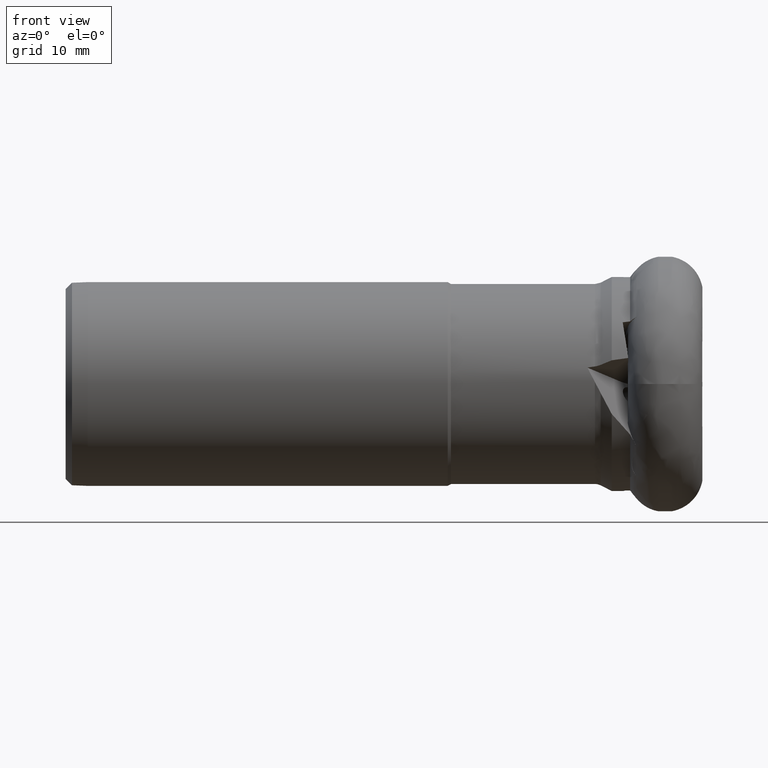
[diagram: clean part render]
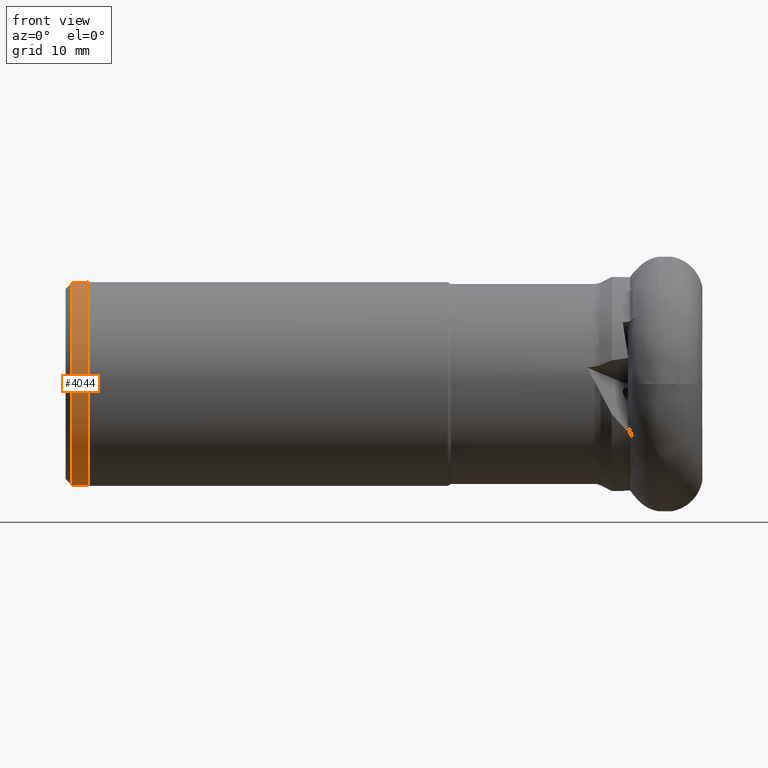
[diagram: same view with one face highlighted and labeled with its STEP entity id]
A machine part, front view. The second image highlights one B-rep face of the part: STEP entity #4044.
In plain terms, the highlighted conical surface has half-angle 2.291 deg.
Its self-contained STEP definition (entity closure, byte-faithful):
#484 = CARTESIAN_POINT ( 'NONE',  ( -97.75000000000000000, 0.0000000000000000000, 0.0000000000000000000 ) ) ;
#766 = DIRECTION ( 'NONE',  ( 0.0000000000000000000, 0.0000000000000000000, -1.000000000000000000 ) ) ;
#824 = EDGE_LOOP ( 'NONE', ( #5362, #6236, #1877, #1158 ) ) ;
#881 = VERTEX_POINT ( 'NONE', #5301 ) ;
#979 = DIRECTION ( 'NONE',  ( 0.0000000000000000000, 0.0000000000000000000, -1.000000000000000000 ) ) ;
#1039 = AXIS2_PLACEMENT_3D ( 'NONE', #484, #1507, #979 ) ;
#1135 = AXIS2_PLACEMENT_3D ( 'NONE', #1197, #2284, #766 ) ;
#1158 = ORIENTED_EDGE ( 'NONE', *, *, #6098, .F. ) ;
#1197 = CARTESIAN_POINT ( 'NONE',  ( -95.25000000000000000, 0.0000000000000000000, 0.0000000000000000000 ) ) ;
#1266 = EDGE_CURVE ( 'NONE', #881, #4827, #2359, .T. ) ;
#1343 = LINE ( 'NONE', #4731, #6319 ) ;
#1507 = DIRECTION ( 'NONE',  ( 1.000000000000000000, -0.0000000000000000000, -0.0000000000000000000 ) ) ;
#1559 = VECTOR ( 'NONE', #4101, 1000.000000000000200 ) ;
#1687 = DIRECTION ( 'NONE',  ( 0.0000000000000000000, 0.0000000000000000000, -1.000000000000000000 ) ) ;
#1877 = ORIENTED_EDGE ( 'NONE', *, *, #3177, .T. ) ;
#1940 = CARTESIAN_POINT ( 'NONE',  ( -97.75000000000000000, 0.0000000000000000000, -15.90000000000000000 ) ) ;
#2260 = CIRCLE ( 'NONE', #1039, 15.90000000000000000 ) ;
#2284 = DIRECTION ( 'NONE',  ( 1.000000000000000000, -0.0000000000000000000, -0.0000000000000000000 ) ) ;
#2359 = LINE ( 'NONE', #6002, #1559 ) ;
#2711 = AXIS2_PLACEMENT_3D ( 'NONE', #4660, #3645, #1687 ) ;
#3059 = CONICAL_SURFACE ( 'NONE', #2711, 15.99999999999998600, 0.03997868712328422200 ) ;
#3139 = FACE_OUTER_BOUND ( 'NONE', #824, .T. ) ;
#3177 = EDGE_CURVE ( 'NONE', #3569, #4013, #1343, .T. ) ;
#3569 = VERTEX_POINT ( 'NONE', #1940 ) ;
#3645 = DIRECTION ( 'NONE',  ( 1.000000000000000000, -0.0000000000000000000, -0.0000000000000000000 ) ) ;
#3751 = DIRECTION ( 'NONE',  ( 0.9992009587217896000, 0.0000000000000000000, -0.03996803834886576000 ) ) ;
#3830 = CARTESIAN_POINT ( 'NONE',  ( -95.25000000000000000, 1.959434878635763600E-015, 15.99999999999998600 ) ) ;
#4013 = VERTEX_POINT ( 'NONE', #6150 ) ;
#4044 = ADVANCED_FACE ( 'NONE', ( #3139 ), #3059, .T. ) ;
#4054 = CIRCLE ( 'NONE', #1135, 15.99999999999998600 ) ;
#4101 = DIRECTION ( 'NONE',  ( 0.9992009587217896000, 4.894673023213711200E-018, 0.03996803834886576000 ) ) ;
#4660 = CARTESIAN_POINT ( 'NONE',  ( -95.25000000000000000, 0.0000000000000000000, 0.0000000000000000000 ) ) ;
#4731 = CARTESIAN_POINT ( 'NONE',  ( -95.25000000000000000, 0.0000000000000000000, -15.99999999999998600 ) ) ;
#4827 = VERTEX_POINT ( 'NONE', #3830 ) ;
#4937 = EDGE_CURVE ( 'NONE', #881, #3569, #2260, .T. ) ;
#5301 = CARTESIAN_POINT ( 'NONE',  ( -97.75000000000000000, 1.947188410644291800E-015, 15.90000000000000000 ) ) ;
#5362 = ORIENTED_EDGE ( 'NONE', *, *, #1266, .F. ) ;
#6002 = CARTESIAN_POINT ( 'NONE',  ( -95.25000000000000000, 1.959434878635763600E-015, 15.99999999999998600 ) ) ;
#6098 = EDGE_CURVE ( 'NONE', #4827, #4013, #4054, .T. ) ;
#6150 = CARTESIAN_POINT ( 'NONE',  ( -95.25000000000000000, 0.0000000000000000000, -15.99999999999998600 ) ) ;
#6236 = ORIENTED_EDGE ( 'NONE', *, *, #4937, .T. ) ;
#6319 = VECTOR ( 'NONE', #3751, 1000.000000000000200 ) ;